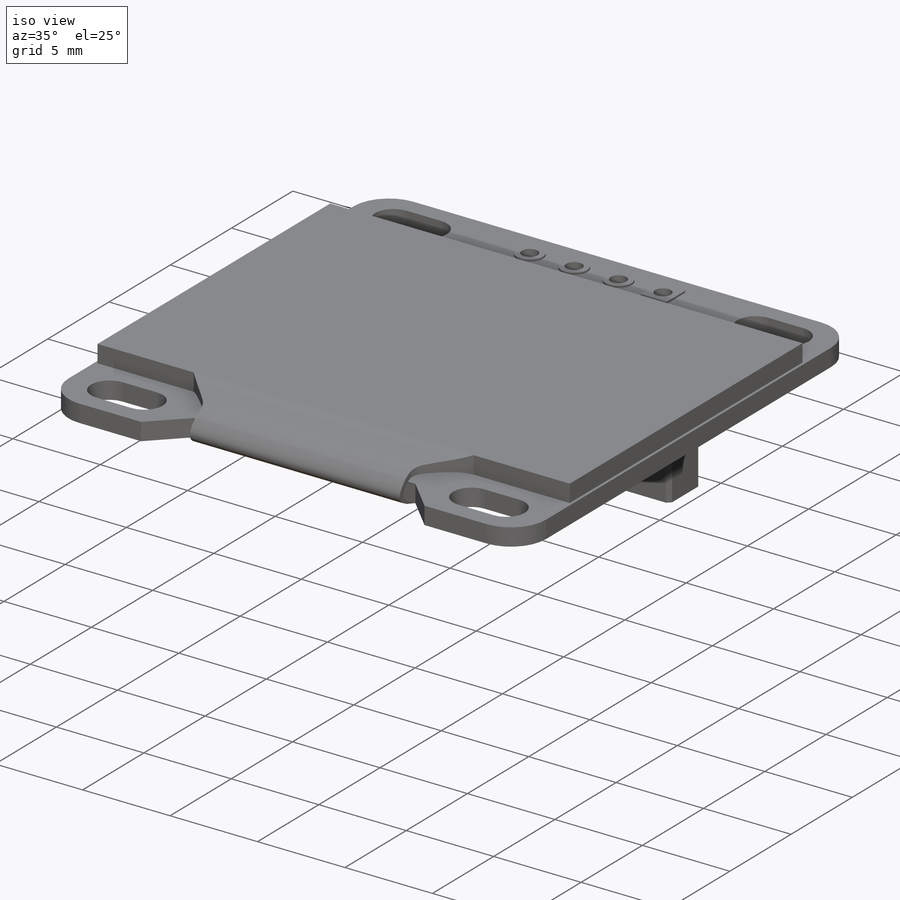
[diagram: iso view]
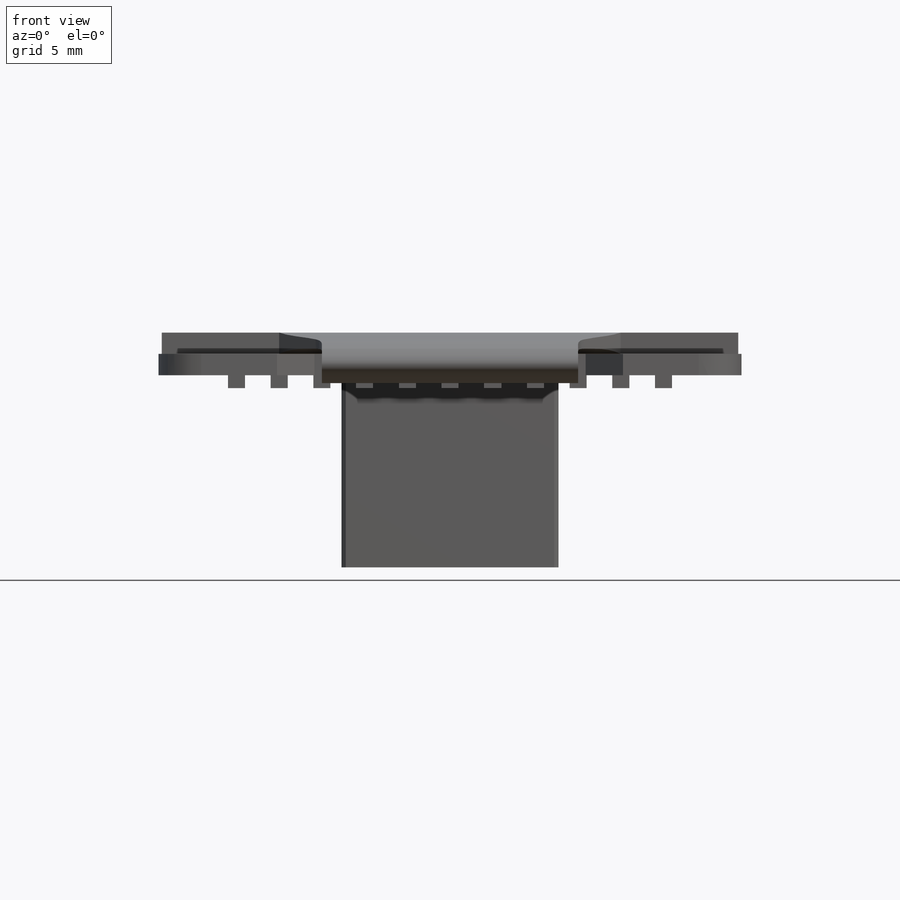
[diagram: front view]
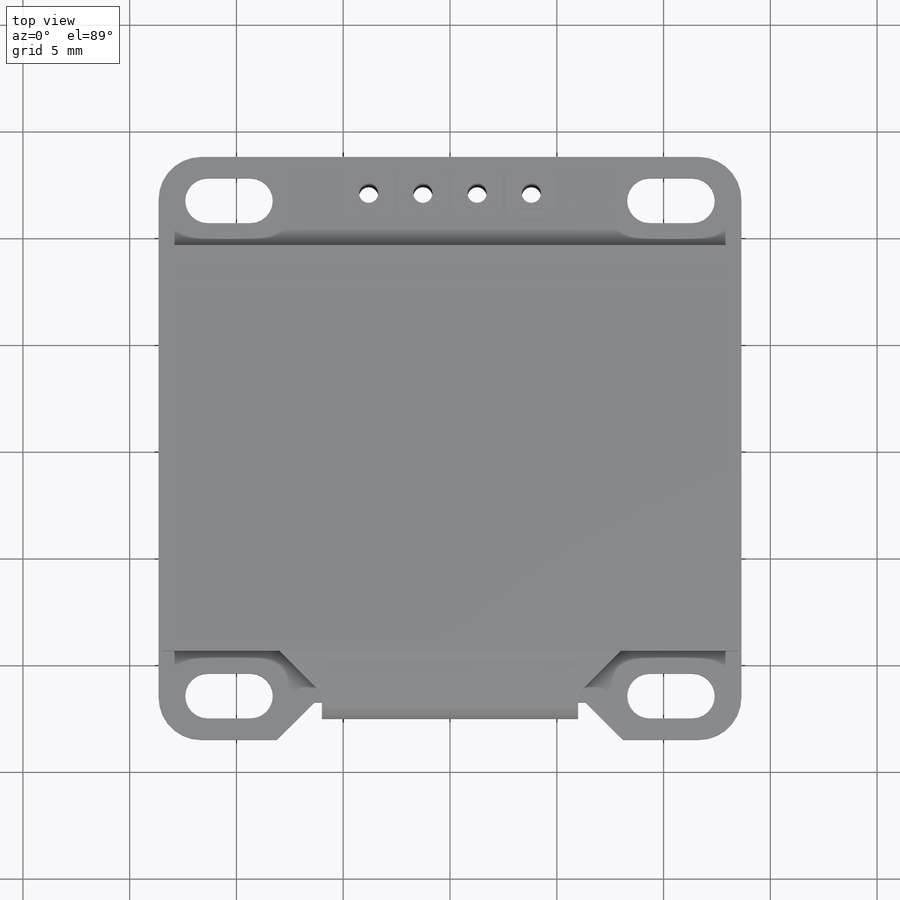
[diagram: top view]
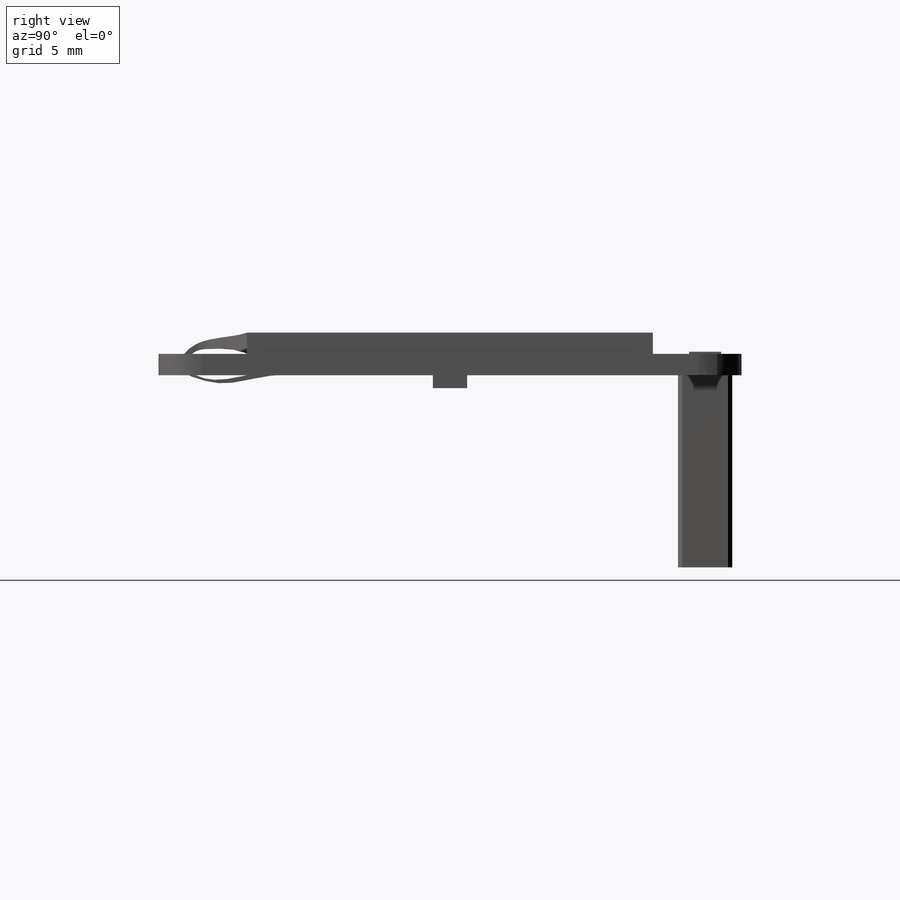
[diagram: right view]
SOLIDWORKS PART (.sldprt)
format: sldprt  version: not decoded by parser v0  size: 480,256 bytes
history: native  units: mm
features: sketch x8, extrude x6, cut_extrude x2, chamfer x2, material x1, plane x1, fillet x1 (+11 scaffold rows collapsed)
feature tree (32):
  scaffold x11  (default folders/planes/origin — collapsed)
  material  "Material <not specified>"
  sketch  "Sketch1"  dims[c1.D1=2.0mm c1.D2=1.3mm c2.D1=27.3mm c2.D2=0.3mm]
  extrude  "Boss-Extrude1"  Depth=1mm
  sketch  "Sketch2"  dims[D1=27.0mm]
  extrude  "Boss-Extrude2"  Depth=1mm
  sketch  "Sketch3"  dims[D1=2.54mm]
  cut_extrude  "Cut-Extrude1"  Depth=1mm
  sketch  "Sketch4"  dims[D1=1.5mm]
  extrude  "Boss-Extrude3"  Depth=0.1mm
  sketch  "Sketch5"  dims[D1=10.16mm]
  extrude  "Boss-Extrude4"  Depth=9mm
  sketch  "Sketch6"
  cut_extrude  "Cut-Extrude2"  Depth=14mm
  chamfer  "Chamfer1"  Distance=0.2mm Angle=45deg
  plane  "Plane1"
  sketch  "Sketch7"
  extrude  "Boss-Extrude5"  Depth=6mm
  chamfer  "Chamfer2"  Distance=2mm Angle=45deg
  fillet  "Fillet1"  Radius=1mm
  sketch  "Sketch8"  dims[c1.D1=0.8mm c2.D1=6.0]
  extrude  "Boss-Extrude6"  Depth=0.6mm
decode coverage: 17 of 19 modeling features carry decoded parameters
note: suppression state not decoded; provenance and decode notes live in map.json
